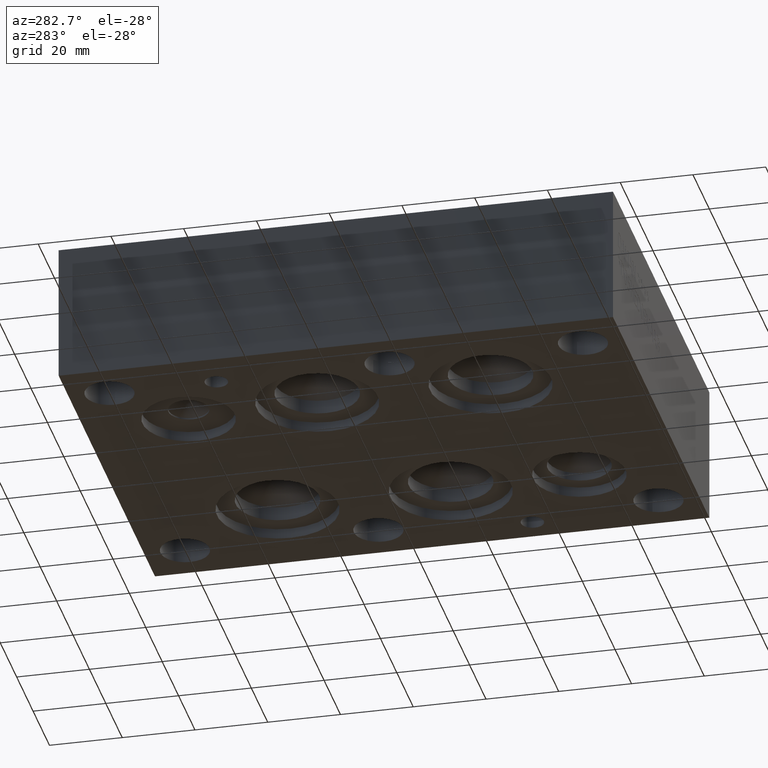
[diagram: clean part render]
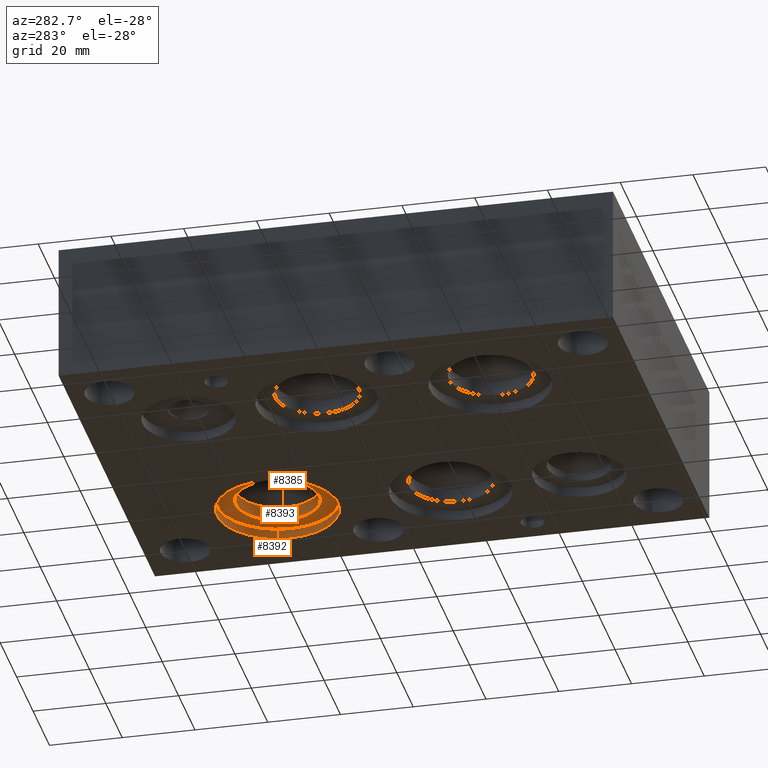
[diagram: same view with one multi-face feature highlighted, each face labeled with its STEP entity id]
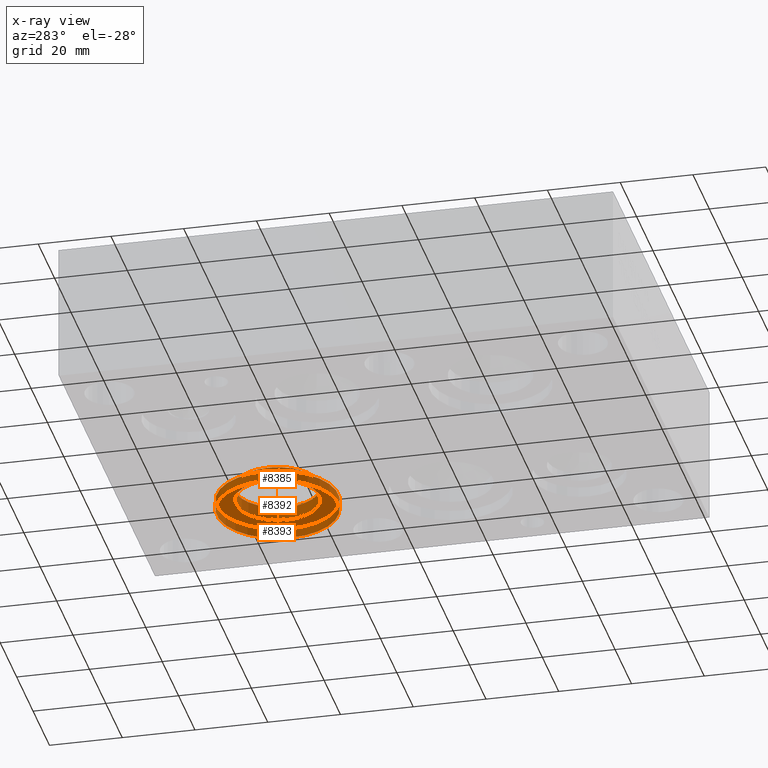
[diagram: x-ray of the same camera — body ghosted, the whole feature saturated]
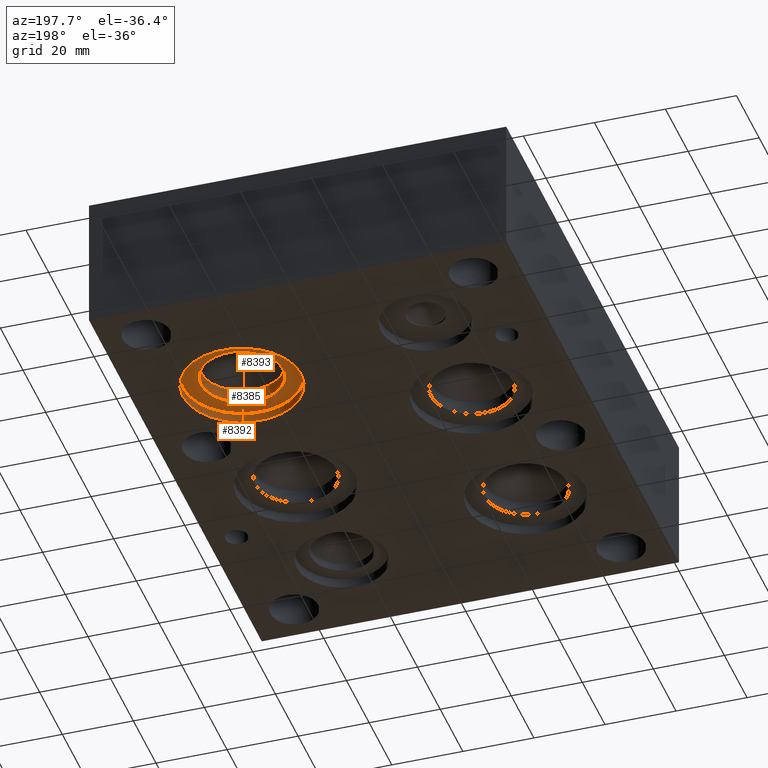
[diagram: same view with one multi-face feature highlighted, each face labeled with its STEP entity id]
A machine part, auxiliary view. The highlighted faces form ONE feature: a stepped (counterbored) hole: 2 coaxial cylindrical walls of radii 11.5062 -> 16.6751 mm joined by 1 annular planar shoulder face(s). The faces share edges in the B-rep.
The next image is the same camera in x-ray: the body ghosted and the whole hole feature saturated, so the bore chain is visible through the body.
A second angle (auxiliary view) of the same feature is appended — it is thin or edge-on in the first view.
Their STEP definitions:
[1] entity #8392 (Cylinder):
#24=CYLINDRICAL_SURFACE('',#8779,16.6751);
#80=CIRCLE('',#8780,16.6751);
#81=CIRCLE('',#8781,16.6751);
#922=FACE_OUTER_BOUND('',#1404,.T.);
#1404=EDGE_LOOP('',(#7090,#7091,#7092,#7093));
#2304=LINE('',#13934,#3152);
#3152=VECTOR('',#10317,16.6751);
#3880=VERTEX_POINT('',#13931);
#3881=VERTEX_POINT('',#13933);
#4974=EDGE_CURVE('',#3880,#3880,#80,.T.);
#4975=EDGE_CURVE('',#3880,#3881,#2304,.T.);
#4976=EDGE_CURVE('',#3881,#3881,#81,.T.);
#7090=ORIENTED_EDGE('',*,*,#4974,.F.);
#7091=ORIENTED_EDGE('',*,*,#4975,.T.);
#7092=ORIENTED_EDGE('',*,*,#4976,.F.);
#7093=ORIENTED_EDGE('',*,*,#4975,.F.);
#8392=ADVANCED_FACE('',(#922),#24,.F.);
#8779=AXIS2_PLACEMENT_3D('',#13930,#10313,#10314);
#8780=AXIS2_PLACEMENT_3D('',#13932,#10315,#10316);
#8781=AXIS2_PLACEMENT_3D('',#13935,#10318,#10319);
#10313=DIRECTION('center_axis',(0.,0.,-1.));
#10314=DIRECTION('ref_axis',(1.,0.,0.));
#10315=DIRECTION('center_axis',(0.,0.,1.));
#10316=DIRECTION('ref_axis',(1.,0.,0.));
#10317=DIRECTION('',(0.,0.,1.));
#10318=DIRECTION('center_axis',(0.,0.,-1.));
#10319=DIRECTION('ref_axis',(1.,0.,0.));
#13930=CARTESIAN_POINT('Origin',(87.3252,111.9124,1.397));
#13931=CARTESIAN_POINT('',(70.6501,111.9124,0.));
#13932=CARTESIAN_POINT('Origin',(87.3252,111.9124,0.));
#13933=CARTESIAN_POINT('',(70.6501,111.9124,2.794));
#13934=CARTESIAN_POINT('',(70.6501,111.9124,1.397));
#13935=CARTESIAN_POINT('Origin',(87.3252,111.9124,2.794));
[2] entity #8385 (Cylinder):
#20=CYLINDRICAL_SURFACE('',#8765,11.5062);
#72=CIRCLE('',#8764,11.5062);
#73=CIRCLE('',#8766,11.5062);
#915=FACE_OUTER_BOUND('',#1395,.T.);
#1395=EDGE_LOOP('',(#7067,#7068,#7069,#7070));
#2299=LINE('',#13906,#3147);
#3147=VECTOR('',#10284,11.5062);
#3870=VERTEX_POINT('',#13899);
#3872=VERTEX_POINT('',#13904);
#4960=EDGE_CURVE('',#3870,#3870,#72,.T.);
#4962=EDGE_CURVE('',#3872,#3872,#73,.T.);
#4963=EDGE_CURVE('',#3872,#3870,#2299,.T.);
#7067=ORIENTED_EDGE('',*,*,#4962,.F.);
#7068=ORIENTED_EDGE('',*,*,#4963,.T.);
#7069=ORIENTED_EDGE('',*,*,#4960,.F.);
#7070=ORIENTED_EDGE('',*,*,#4963,.F.);
#8385=ADVANCED_FACE('',(#915),#20,.F.);
#8764=AXIS2_PLACEMENT_3D('',#13900,#10277,#10278);
#8765=AXIS2_PLACEMENT_3D('',#13903,#10280,#10281);
#8766=AXIS2_PLACEMENT_3D('',#13905,#10282,#10283);
#10277=DIRECTION('center_axis',(0.,0.,-1.));
#10278=DIRECTION('ref_axis',(1.,0.,0.));
#10280=DIRECTION('center_axis',(0.,0.,-1.));
#10281=DIRECTION('ref_axis',(1.,0.,0.));
#10282=DIRECTION('center_axis',(0.,0.,1.));
#10283=DIRECTION('ref_axis',(1.,0.,0.));
#10284=DIRECTION('',(0.,0.,1.));
#13899=CARTESIAN_POINT('',(75.819,111.9124,6.64311));
#13900=CARTESIAN_POINT('Origin',(87.3252,111.9124,6.64311));
#13903=CARTESIAN_POINT('Origin',(87.3252,111.9124,3.321555));
#13904=CARTESIAN_POINT('',(75.819,111.9124,2.794));
#13905=CARTESIAN_POINT('Origin',(87.3252,111.9124,2.794));
#13906=CARTESIAN_POINT('',(75.819,111.9124,3.321555));
[3] entity #8393 (Plane):
#73=CIRCLE('',#8766,11.5062);
#81=CIRCLE('',#8781,16.6751);
#508=FACE_BOUND('',#1406,.T.);
#923=FACE_OUTER_BOUND('',#1405,.T.);
#1405=EDGE_LOOP('',(#7094));
#1406=EDGE_LOOP('',(#7095));
#3872=VERTEX_POINT('',#13904);
#3881=VERTEX_POINT('',#13933);
#4962=EDGE_CURVE('',#3872,#3872,#73,.T.);
#4976=EDGE_CURVE('',#3881,#3881,#81,.T.);
#7094=ORIENTED_EDGE('',*,*,#4976,.T.);
#7095=ORIENTED_EDGE('',*,*,#4962,.T.);
#7662=PLANE('',#8782);
#8393=ADVANCED_FACE('',(#923,#508),#7662,.T.);
#8766=AXIS2_PLACEMENT_3D('',#13905,#10282,#10283);
#8781=AXIS2_PLACEMENT_3D('',#13935,#10318,#10319);
#8782=AXIS2_PLACEMENT_3D('',#13936,#10320,#10321);
#10282=DIRECTION('center_axis',(0.,0.,1.));
#10283=DIRECTION('ref_axis',(1.,0.,0.));
#10318=DIRECTION('center_axis',(0.,0.,-1.));
#10319=DIRECTION('ref_axis',(1.,0.,0.));
#10320=DIRECTION('center_axis',(0.,0.,-1.));
#10321=DIRECTION('ref_axis',(1.,0.,0.));
#13904=CARTESIAN_POINT('',(75.819,111.9124,2.794));
#13905=CARTESIAN_POINT('Origin',(87.3252,111.9124,2.794));
#13933=CARTESIAN_POINT('',(70.6501,111.9124,2.794));
#13935=CARTESIAN_POINT('Origin',(87.3252,111.9124,2.794));
#13936=CARTESIAN_POINT('Origin',(87.3252,111.9124,2.794));